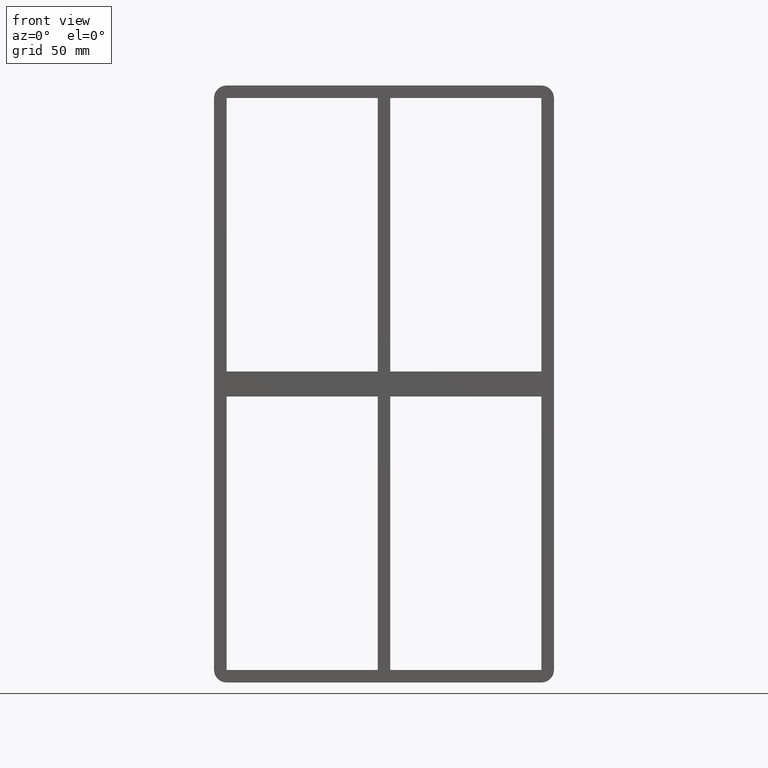
[diagram: clean part render]
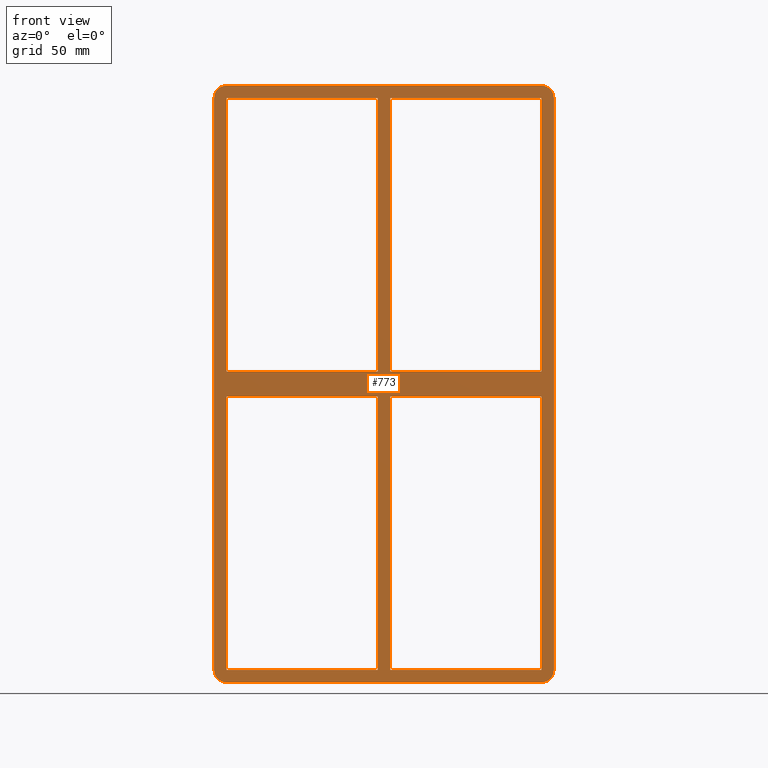
[diagram: same view with one face highlighted and labeled with its STEP entity id]
A machine part, front view. The second image highlights one B-rep face of the part: STEP entity #773.
In plain terms, the highlighted planar face has unit normal (0, 1, 0).
Its self-contained STEP definition (entity closure, byte-faithful):
#75=CARTESIAN_POINT('',(5.0,-3.0,-10.000000000017939));
#76=VERTEX_POINT('',#75);
#91=CARTESIAN_POINT('',(125.49999999999272,-3.0,-10.000000000017968));
#92=VERTEX_POINT('',#91);
#99=CARTESIAN_POINT('',(125.49999999999272,-3.0,-10.000000000017968));
#100=DIRECTION('',(-1.0,0.0,0.0));
#101=VECTOR('',#100,120.49999999999272);
#102=LINE('',#99,#101);
#103=EDGE_CURVE('',#92,#76,#102,.T.);
#113=CARTESIAN_POINT('',(-5.000000000001243,-3.0,-10.000000000017934));
#114=VERTEX_POINT('',#113);
#123=CARTESIAN_POINT('',(-125.49999999999967,-3.0,-10.000000000017906));
#124=VERTEX_POINT('',#123);
#125=CARTESIAN_POINT('',(-5.000000000001251,-3.0,-10.000000000017936));
#126=DIRECTION('',(-1.0,0.0,0.0));
#127=VECTOR('',#126,120.49999999999844);
#128=LINE('',#125,#127);
#129=EDGE_CURVE('',#114,#124,#128,.T.);
#153=CARTESIAN_POINT('',(5.0,-3.0,10.0));
#154=VERTEX_POINT('',#153);
#163=CARTESIAN_POINT('',(125.4999999999999,-3.0,10.0));
#164=VERTEX_POINT('',#163);
#165=CARTESIAN_POINT('',(4.999999999999986,-3.0,10.0));
#166=DIRECTION('',(1.0,0.0,0.0));
#167=VECTOR('',#166,120.49999999999994);
#168=LINE('',#165,#167);
#169=EDGE_CURVE('',#154,#164,#168,.T.);
#195=CARTESIAN_POINT('',(-5.000000000001261,-3.0,10.0));
#196=VERTEX_POINT('',#195);
#211=CARTESIAN_POINT('',(-125.49999999999967,-3.0,10.0));
#212=VERTEX_POINT('',#211);
#219=CARTESIAN_POINT('',(-125.49999999999967,-3.0,10.0));
#220=DIRECTION('',(1.0,0.0,0.0));
#221=VECTOR('',#220,120.49999999999841);
#222=LINE('',#219,#221);
#223=EDGE_CURVE('',#212,#196,#222,.T.);
#242=CARTESIAN_POINT('',(-125.5,-3.0,228.00000000000006));
#243=VERTEX_POINT('',#242);
#250=CARTESIAN_POINT('',(-125.50000000000003,-3.0,10.0));
#251=DIRECTION('',(0.0,0.0,1.0));
#252=VECTOR('',#251,217.99999999999997);
#253=LINE('',#250,#252);
#254=EDGE_CURVE('',#212,#243,#253,.T.);
#273=CARTESIAN_POINT('',(125.5,-3.0,-228.00000000000006));
#274=VERTEX_POINT('',#273);
#281=CARTESIAN_POINT('',(125.5,-3.0,-10.000000000017963));
#282=DIRECTION('',(0.0,0.0,-1.0));
#283=VECTOR('',#282,217.99999999998204);
#284=LINE('',#281,#283);
#285=EDGE_CURVE('',#92,#274,#284,.T.);
#296=CARTESIAN_POINT('',(125.5,-3.0,228.00000000000006));
#297=VERTEX_POINT('',#296);
#298=CARTESIAN_POINT('',(125.5,-3.0,228.00000000000006));
#299=DIRECTION('',(0.0,0.0,-1.0));
#300=VECTOR('',#299,218.00000000000006);
#301=LINE('',#298,#300);
#302=EDGE_CURVE('',#297,#164,#301,.T.);
#482=CARTESIAN_POINT('',(-5.000000000001297,-3.0,228.00000000000006));
#483=VERTEX_POINT('',#482);
#484=CARTESIAN_POINT('',(-5.000000000001259,-3.0,10.0));
#485=DIRECTION('',(0.0,0.0,1.0));
#486=VECTOR('',#485,218.00000000000006);
#487=LINE('',#484,#486);
#488=EDGE_CURVE('',#196,#483,#487,.T.);
#507=CARTESIAN_POINT('',(5.0,-3.0,228.00000000000006));
#508=VERTEX_POINT('',#507);
#515=CARTESIAN_POINT('',(5.0,-3.0,228.00000000000006));
#516=DIRECTION('',(0.0,0.0,-1.0));
#517=VECTOR('',#516,218.00000000000006);
#518=LINE('',#515,#517);
#519=EDGE_CURVE('',#508,#154,#518,.T.);
#531=CARTESIAN_POINT('',(-5.000000000001217,-3.0,-228.00000000000006));
#532=VERTEX_POINT('',#531);
#539=CARTESIAN_POINT('',(-5.000000000001217,-3.0,-228.00000000000006));
#540=DIRECTION('',(0.0,0.0,1.0));
#541=VECTOR('',#540,217.99999999998209);
#542=LINE('',#539,#541);
#543=EDGE_CURVE('',#532,#114,#542,.T.);
#554=CARTESIAN_POINT('',(5.0,-3.0,-227.99999999997084));
#555=VERTEX_POINT('',#554);
#556=CARTESIAN_POINT('',(5.0,-3.0,-10.000000000017934));
#557=DIRECTION('',(0.0,0.0,-1.0));
#558=VECTOR('',#557,217.99999999995291);
#559=LINE('',#556,#558);
#560=EDGE_CURVE('',#76,#555,#559,.T.);
#579=CARTESIAN_POINT('',(-125.5,-3.0,-228.00000000000006));
#580=VERTEX_POINT('',#579);
#587=CARTESIAN_POINT('',(-5.000000000001215,-3.0,-228.00000000000006));
#588=DIRECTION('',(-1.0,0.0,0.0));
#589=VECTOR('',#588,120.49999999999878);
#590=LINE('',#587,#589);
#591=EDGE_CURVE('',#532,#580,#590,.T.);
#602=CARTESIAN_POINT('',(125.5,-3.0,-228.00000000000006));
#603=DIRECTION('',(-1.0,0.0,0.0));
#604=VECTOR('',#603,120.5);
#605=LINE('',#602,#604);
#606=EDGE_CURVE('',#274,#555,#605,.T.);
#621=CARTESIAN_POINT('',(5.000000000000007,-3.0,228.0));
#622=DIRECTION('',(1.0,0.0,0.0));
#623=VECTOR('',#622,120.5);
#624=LINE('',#621,#623);
#625=EDGE_CURVE('',#508,#297,#624,.T.);
#636=CARTESIAN_POINT('',(-125.5,-3.0,228.0));
#637=DIRECTION('',(1.0,0.0,0.0));
#638=VECTOR('',#637,120.49999999999869);
#639=LINE('',#636,#638);
#640=EDGE_CURVE('',#243,#483,#639,.T.);
#653=CARTESIAN_POINT('',(-125.50000000000003,-3.0,-238.0));
#654=VERTEX_POINT('',#653);
#661=CARTESIAN_POINT('',(-135.50000000000003,-3.0,-228.0));
#662=VERTEX_POINT('',#661);
#663=CARTESIAN_POINT('',(-125.50000000000003,-3.0,-228.0));
#664=DIRECTION('',(0.0,1.0,0.0));
#665=DIRECTION('',(-0.707106781186547,0.0,-0.707106781186547));
#666=AXIS2_PLACEMENT_3D('',#663,#664,#665);
#667=CIRCLE('',#666,9.999999999999998);
#668=EDGE_CURVE('',#654,#662,#667,.T.);
#679=CARTESIAN_POINT('',(-1.463651E-014,-3.0,0.0));
#680=DIRECTION('',(0.0,1.0,0.0));
#681=DIRECTION('',(0.0,0.0,1.0));
#682=AXIS2_PLACEMENT_3D('',#679,#680,#681);
#683=PLANE('',#682);
#684=ORIENTED_EDGE('',*,*,#668,.F.);
#685=CARTESIAN_POINT('',(125.49999999999999,-3.0,-238.0));
#686=VERTEX_POINT('',#685);
#687=CARTESIAN_POINT('',(-125.5,-3.0,-238.0));
#688=DIRECTION('',(1.0,0.0,0.0));
#689=VECTOR('',#688,251.0);
#690=LINE('',#687,#689);
#691=EDGE_CURVE('',#654,#686,#690,.T.);
#692=ORIENTED_EDGE('',*,*,#691,.T.);
#693=CARTESIAN_POINT('',(135.5,-3.0,-228.0));
#694=VERTEX_POINT('',#693);
#695=CARTESIAN_POINT('',(125.49999999999999,-3.0,-228.0));
#696=DIRECTION('',(0.0,1.0,0.0));
#697=DIRECTION('',(0.707106781186547,0.0,-0.707106781186547));
#698=AXIS2_PLACEMENT_3D('',#695,#696,#697);
#699=CIRCLE('',#698,9.999999999999998);
#700=EDGE_CURVE('',#694,#686,#699,.T.);
#701=ORIENTED_EDGE('',*,*,#700,.F.);
#702=CARTESIAN_POINT('',(135.5,-3.0,228.0));
#703=VERTEX_POINT('',#702);
#704=CARTESIAN_POINT('',(135.5,-3.0,-228.0));
#705=DIRECTION('',(0.0,0.0,1.0));
#706=VECTOR('',#705,456.0);
#707=LINE('',#704,#706);
#708=EDGE_CURVE('',#694,#703,#707,.T.);
#709=ORIENTED_EDGE('',*,*,#708,.T.);
#710=CARTESIAN_POINT('',(125.49999999999999,-3.0,238.0));
#711=VERTEX_POINT('',#710);
#712=CARTESIAN_POINT('',(125.49999999999999,-3.0,228.0));
#713=DIRECTION('',(0.0,1.0,0.0));
#714=DIRECTION('',(0.707106781186547,0.0,0.707106781186547));
#715=AXIS2_PLACEMENT_3D('',#712,#713,#714);
#716=CIRCLE('',#715,9.999999999999998);
#717=EDGE_CURVE('',#711,#703,#716,.T.);
#718=ORIENTED_EDGE('',*,*,#717,.F.);
#719=CARTESIAN_POINT('',(-125.50000000000003,-3.0,238.0));
#720=VERTEX_POINT('',#719);
#721=CARTESIAN_POINT('',(125.49999999999997,-3.0,238.0));
#722=DIRECTION('',(-1.0,0.0,0.0));
#723=VECTOR('',#722,251.0);
#724=LINE('',#721,#723);
#725=EDGE_CURVE('',#711,#720,#724,.T.);
#726=ORIENTED_EDGE('',*,*,#725,.T.);
#727=CARTESIAN_POINT('',(-135.50000000000003,-3.0,228.0));
#728=VERTEX_POINT('',#727);
#729=CARTESIAN_POINT('',(-125.50000000000003,-3.0,228.0));
#730=DIRECTION('',(0.0,1.0,0.0));
#731=DIRECTION('',(-0.707106781186547,0.0,0.707106781186547));
#732=AXIS2_PLACEMENT_3D('',#729,#730,#731);
#733=CIRCLE('',#732,9.999999999999998);
#734=EDGE_CURVE('',#728,#720,#733,.T.);
#735=ORIENTED_EDGE('',*,*,#734,.F.);
#736=CARTESIAN_POINT('',(-135.50000000000003,-3.0,228.0));
#737=DIRECTION('',(0.0,0.0,-1.0));
#738=VECTOR('',#737,456.0);
#739=LINE('',#736,#738);
#740=EDGE_CURVE('',#728,#662,#739,.T.);
#741=ORIENTED_EDGE('',*,*,#740,.T.);
#742=EDGE_LOOP('',(#684,#692,#701,#709,#718,#726,#735,#741));
#743=FACE_OUTER_BOUND('',#742,.T.);
#744=ORIENTED_EDGE('',*,*,#254,.T.);
#745=ORIENTED_EDGE('',*,*,#640,.T.);
#746=ORIENTED_EDGE('',*,*,#488,.F.);
#747=ORIENTED_EDGE('',*,*,#223,.F.);
#748=EDGE_LOOP('',(#744,#745,#746,#747));
#749=FACE_BOUND('',#748,.T.);
#750=ORIENTED_EDGE('',*,*,#285,.T.);
#751=ORIENTED_EDGE('',*,*,#606,.T.);
#752=ORIENTED_EDGE('',*,*,#560,.F.);
#753=ORIENTED_EDGE('',*,*,#103,.F.);
#754=EDGE_LOOP('',(#750,#751,#752,#753));
#755=FACE_BOUND('',#754,.T.);
#756=ORIENTED_EDGE('',*,*,#129,.F.);
#757=ORIENTED_EDGE('',*,*,#543,.F.);
#758=ORIENTED_EDGE('',*,*,#591,.T.);
#759=CARTESIAN_POINT('',(-125.50000000000003,-3.0,-228.00000000000006));
#760=DIRECTION('',(0.0,0.0,1.0));
#761=VECTOR('',#760,217.99999999998215);
#762=LINE('',#759,#761);
#763=EDGE_CURVE('',#580,#124,#762,.T.);
#764=ORIENTED_EDGE('',*,*,#763,.T.);
#765=EDGE_LOOP('',(#756,#757,#758,#764));
#766=FACE_BOUND('',#765,.T.);
#767=ORIENTED_EDGE('',*,*,#169,.F.);
#768=ORIENTED_EDGE('',*,*,#519,.F.);
#769=ORIENTED_EDGE('',*,*,#625,.T.);
#770=ORIENTED_EDGE('',*,*,#302,.T.);
#771=EDGE_LOOP('',(#767,#768,#769,#770));
#772=FACE_BOUND('',#771,.T.);
#773=ADVANCED_FACE('',(#743,#749,#755,#766,#772),#683,.F.);